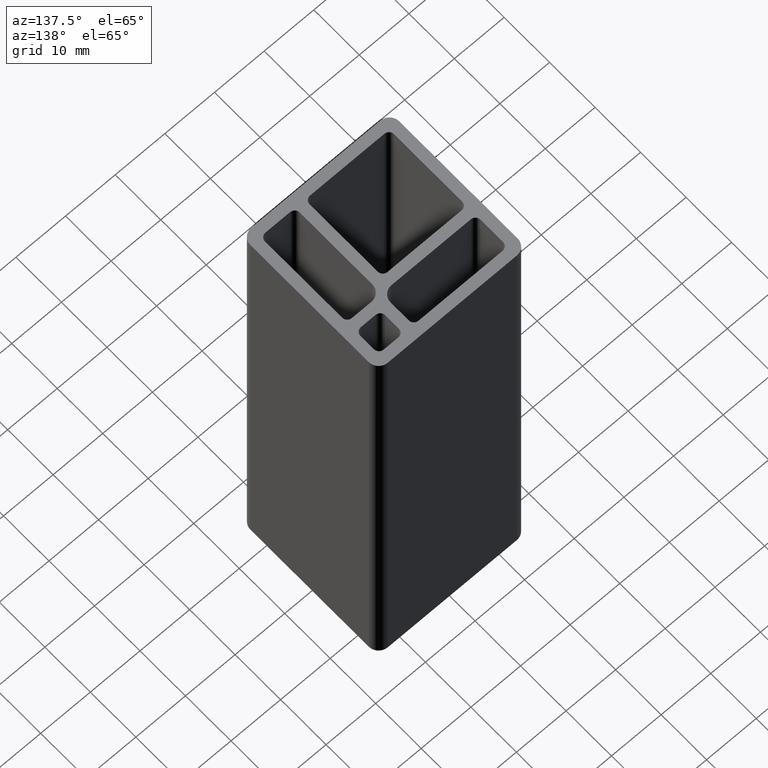
[diagram: clean part render]
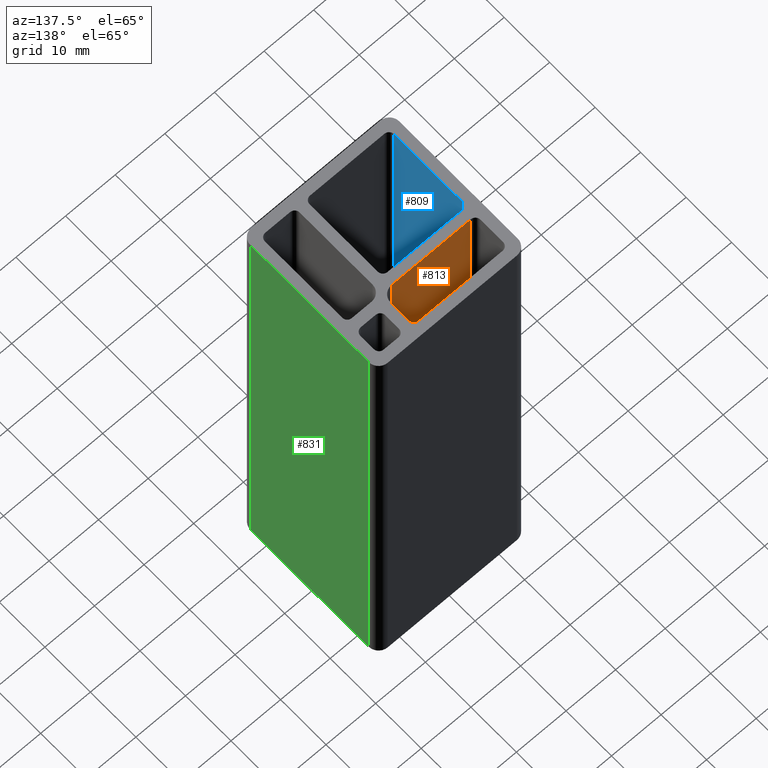
[diagram: same view with three faces highlighted in distinct colors, each labeled with its STEP entity id]
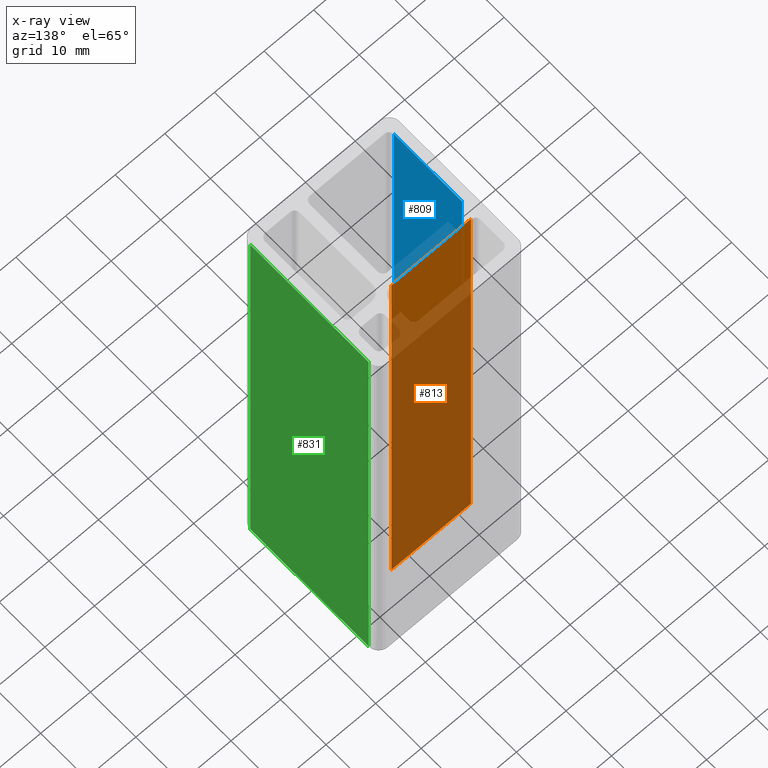
[diagram: x-ray of the same camera — body ghosted, the three highlighted faces saturated]
A machine part, auxiliary view with three faces highlighted in distinct colors.
The next image is the same camera in x-ray (body ghosted, the three faces saturated) — at least one of them is partly hidden behind the body in this view.
Their STEP definitions:

[orange] entity #813 — the highlighted planar face has unit normal (0, -1, 0).
#99=FACE_OUTER_BOUND('',#141,.T.);
#141=EDGE_LOOP('',(#599,#600,#601,#602));
#207=LINE('',#1269,#287);
#208=LINE('',#1271,#288);
#209=LINE('',#1273,#289);
#210=LINE('',#1274,#290);
#287=VECTOR('',#1023,16.);
#288=VECTOR('',#1024,100.);
#289=VECTOR('',#1025,16.);
#290=VECTOR('',#1026,100.);
#367=VERTEX_POINT('',#1267);
#368=VERTEX_POINT('',#1268);
#369=VERTEX_POINT('',#1270);
#370=VERTEX_POINT('',#1272);
#463=EDGE_CURVE('',#367,#368,#207,.T.);
#464=EDGE_CURVE('',#369,#367,#208,.T.);
#465=EDGE_CURVE('',#370,#369,#209,.T.);
#466=EDGE_CURVE('',#370,#368,#210,.T.);
#599=ORIENTED_EDGE('',*,*,#463,.F.);
#600=ORIENTED_EDGE('',*,*,#464,.F.);
#601=ORIENTED_EDGE('',*,*,#465,.F.);
#602=ORIENTED_EDGE('',*,*,#466,.T.);
#783=PLANE('',#873);
#813=ADVANCED_FACE('',(#99),#783,.F.);
#873=AXIS2_PLACEMENT_3D('',#1266,#1021,#1022);
#1021=DIRECTION('center_axis',(2.77555756156289E-16,-1.,0.));
#1022=DIRECTION('ref_axis',(1.,2.66453525910038E-16,0.));
#1023=DIRECTION('',(-1.,-2.77555756156289E-16,0.));
#1024=DIRECTION('',(0.,0.,1.));
#1025=DIRECTION('',(1.,2.77555756156289E-16,0.));
#1026=DIRECTION('',(0.,0.,1.));
#1266=CARTESIAN_POINT('Origin',(-12.,6.,0.));
#1267=CARTESIAN_POINT('',(4.,6.00000000000001,100.));
#1268=CARTESIAN_POINT('',(-12.,6.,100.));
#1269=CARTESIAN_POINT('',(-6.,6.00000000000001,100.));
#1270=CARTESIAN_POINT('',(4.,6.00000000000001,0.));
#1271=CARTESIAN_POINT('',(4.,6.00000000000001,0.));
#1272=CARTESIAN_POINT('',(-12.,6.,0.));
#1273=CARTESIAN_POINT('',(-6.,6.00000000000001,0.));
#1274=CARTESIAN_POINT('',(-12.,6.,0.));

[blue] entity #809 — the highlighted planar face has unit normal (-1, -0, 0).
#95=FACE_OUTER_BOUND('',#137,.T.);
#137=EDGE_LOOP('',(#583,#584,#585,#586));
#199=LINE('',#1243,#279);
#200=LINE('',#1247,#280);
#201=LINE('',#1249,#281);
#202=LINE('',#1250,#282);
#279=VECTOR('',#995,100.);
#280=VECTOR('',#1000,15.);
#281=VECTOR('',#1001,100.);
#282=VECTOR('',#1002,15.);
#359=VERTEX_POINT('',#1240);
#360=VERTEX_POINT('',#1242);
#361=VERTEX_POINT('',#1246);
#362=VERTEX_POINT('',#1248);
#450=EDGE_CURVE('',#360,#359,#199,.T.);
#452=EDGE_CURVE('',#361,#359,#200,.T.);
#453=EDGE_CURVE('',#362,#361,#201,.T.);
#454=EDGE_CURVE('',#360,#362,#202,.T.);
#583=ORIENTED_EDGE('',*,*,#452,.F.);
#584=ORIENTED_EDGE('',*,*,#453,.F.);
#585=ORIENTED_EDGE('',*,*,#454,.F.);
#586=ORIENTED_EDGE('',*,*,#450,.T.);
#781=PLANE('',#865);
#809=ADVANCED_FACE('',(#95),#781,.F.);
#865=AXIS2_PLACEMENT_3D('',#1245,#998,#999);
#995=DIRECTION('',(0.,0.,1.));
#998=DIRECTION('center_axis',(-1.,-5.9211894646675E-16,0.));
#999=DIRECTION('ref_axis',(5.32907051820075E-16,-1.,0.));
#1000=DIRECTION('',(-5.9211894646675E-16,1.,0.));
#1001=DIRECTION('',(0.,0.,1.));
#1002=DIRECTION('',(5.9211894646675E-16,-1.,0.));
#1240=CARTESIAN_POINT('',(-13.,3.,100.));
#1242=CARTESIAN_POINT('',(-13.,3.,0.));
#1243=CARTESIAN_POINT('',(-13.,3.,0.));
#1245=CARTESIAN_POINT('Origin',(-13.,3.,0.));
#1246=CARTESIAN_POINT('',(-13.,-12.,100.));
#1247=CARTESIAN_POINT('',(-13.,1.50000000019473,100.));
#1248=CARTESIAN_POINT('',(-13.,-12.,0.));
#1249=CARTESIAN_POINT('',(-13.,-12.,0.));
#1250=CARTESIAN_POINT('',(-13.,1.50000000019473,0.));

[green] entity #831 — the highlighted planar face has unit normal (1, 0, 0).
#117=FACE_OUTER_BOUND('',#159,.T.);
#159=EDGE_LOOP('',(#671,#672,#673,#674));
#243=LINE('',#1375,#323);
#244=LINE('',#1379,#324);
#245=LINE('',#1381,#325);
#246=LINE('',#1382,#326);
#323=VECTOR('',#1127,100.);
#324=VECTOR('',#1132,25.9999999739653);
#325=VECTOR('',#1133,100.);
#326=VECTOR('',#1134,25.9999999739653);
#403=VERTEX_POINT('',#1372);
#404=VERTEX_POINT('',#1374);
#405=VERTEX_POINT('',#1378);
#406=VERTEX_POINT('',#1380);
#516=EDGE_CURVE('',#404,#403,#243,.T.);
#518=EDGE_CURVE('',#403,#405,#244,.T.);
#519=EDGE_CURVE('',#406,#405,#245,.T.);
#520=EDGE_CURVE('',#404,#406,#246,.T.);
#671=ORIENTED_EDGE('',*,*,#518,.T.);
#672=ORIENTED_EDGE('',*,*,#519,.F.);
#673=ORIENTED_EDGE('',*,*,#520,.F.);
#674=ORIENTED_EDGE('',*,*,#516,.T.);
#792=PLANE('',#909);
#831=ADVANCED_FACE('',(#117),#792,.T.);
#909=AXIS2_PLACEMENT_3D('',#1377,#1130,#1131);
#1127=DIRECTION('',(0.,0.,1.));
#1130=DIRECTION('center_axis',(1.,2.97539770897479E-11,0.));
#1131=DIRECTION('ref_axis',(-2.97539770599542E-11,1.,0.));
#1132=DIRECTION('',(2.97539770897479E-11,-1.,0.));
#1133=DIRECTION('',(0.,0.,1.));
#1134=DIRECTION('',(2.97539770897479E-11,-1.,0.));
#1372=CARTESIAN_POINT('',(14.9999999992264,12.9999999868977,100.));
#1374=CARTESIAN_POINT('',(14.9999999992264,12.9999999868977,0.));
#1375=CARTESIAN_POINT('',(14.9999999992264,12.9999999868977,0.));
#1377=CARTESIAN_POINT('Origin',(15.,-12.9999999870676,0.));
#1378=CARTESIAN_POINT('',(15.,-12.9999999870676,100.));
#1379=CARTESIAN_POINT('',(14.9999999998066,-6.4999999931159,100.));
#1380=CARTESIAN_POINT('',(15.,-12.9999999870676,0.));
#1381=CARTESIAN_POINT('',(15.,-12.9999999870676,0.));
#1382=CARTESIAN_POINT('',(14.9999999998066,-6.4999999931159,0.));